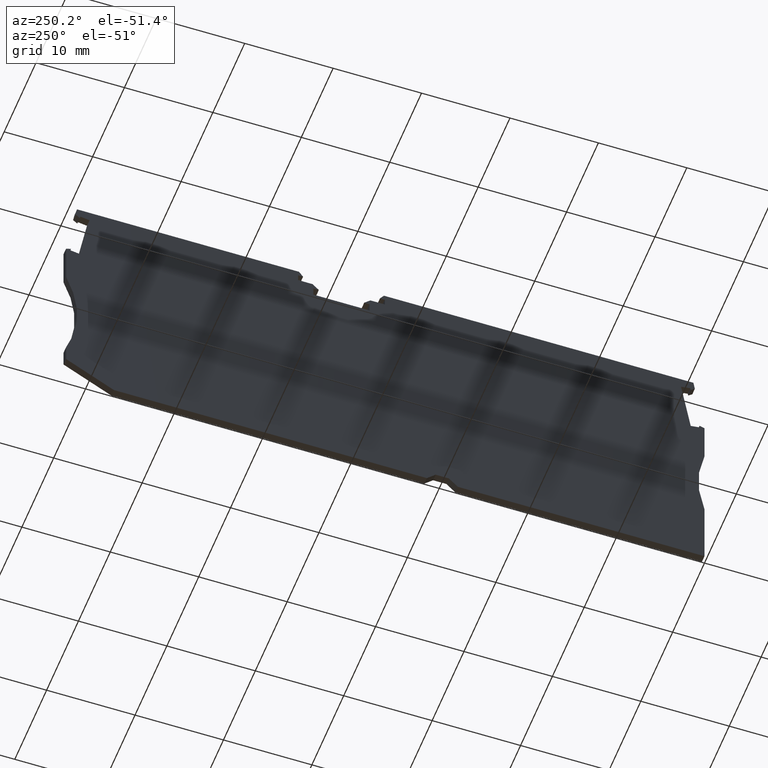
[diagram: clean part render]
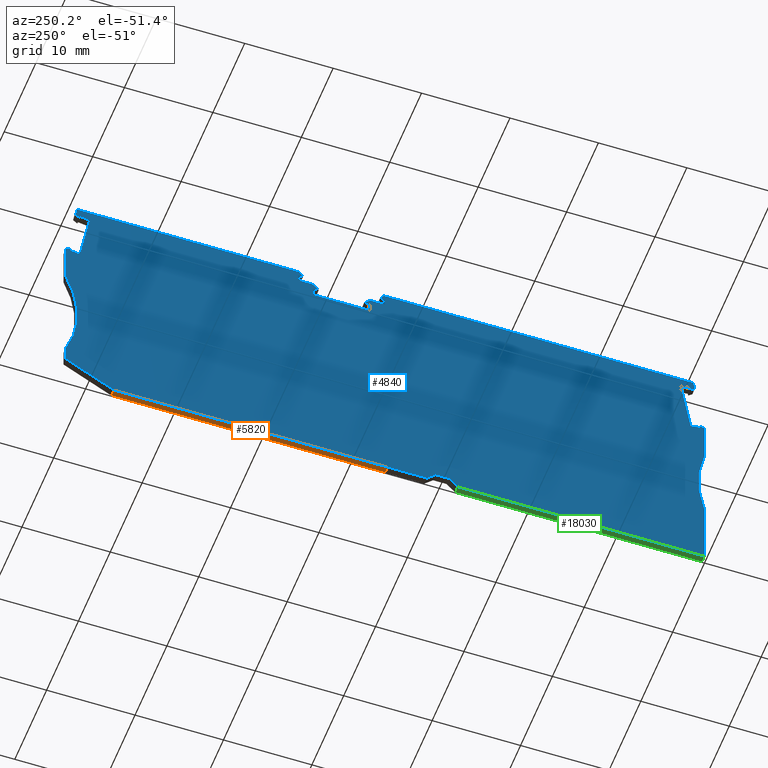
[diagram: same view with three faces highlighted in distinct colors, each labeled with its STEP entity id]
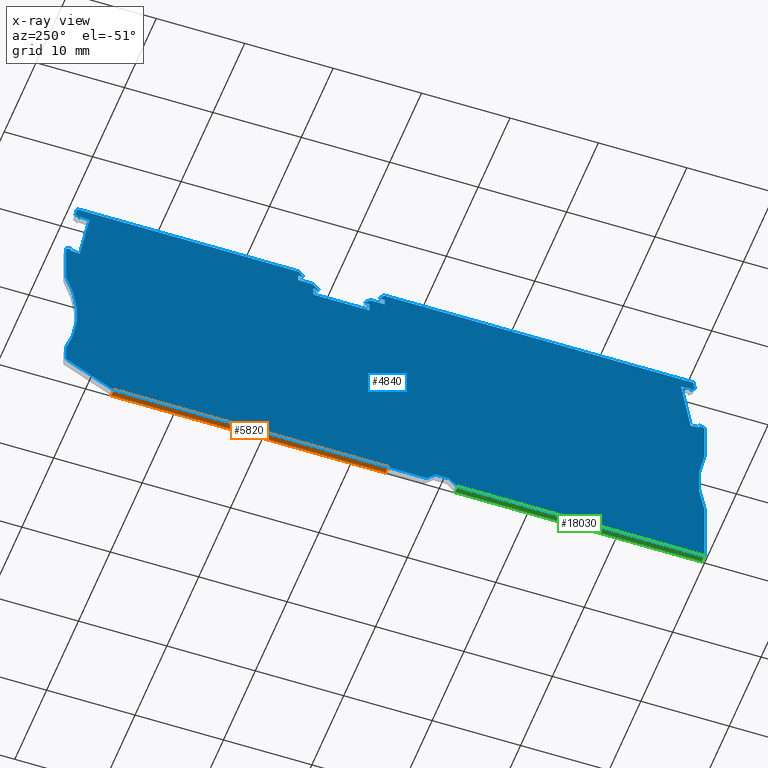
[diagram: x-ray of the same camera — body ghosted, the three highlighted faces saturated]
A machine part, auxiliary view with three faces highlighted in distinct colors.
The next image is the same camera in x-ray (body ghosted, the three faces saturated) — at least one of them is partly hidden behind the body in this view.
Their STEP definitions:

[orange] entity #5820 — the highlighted planar face has unit normal (0, 0, -1).
#480=CARTESIAN_POINT('',(27.0296808260463,-38.1999999999979,
2.14999999999998));
#490=DIRECTION('',(-1.94289029309402E-16,-1.,4.48415508583941E-44));
#500=DIRECTION('',(-1.,1.94289029309402E-16,0.));
#510=AXIS2_PLACEMENT_3D('',#480,#490,#500);
#520=PLANE('',#510);
#530=CARTESIAN_POINT('',(47.920285,-38.1999999999979,2.14999999999998));
#540=DIRECTION('',(-1.,1.94289029309402E-16,0.));
#550=VECTOR('',#540,1.);
#560=LINE('',#530,#550);
#570=CARTESIAN_POINT('',(35.6296808260589,-38.1999999999979,
2.14999999999998));
#580=VERTEX_POINT('',#570);
#630=CARTESIAN_POINT('',(35.6296808260592,-38.1999999999979,
-2.8421709430404E-14));
#640=DIRECTION('',(-1.06581410364014E-13,2.52435489670724E-29,1.));
#650=VECTOR('',#640,1.);
#660=LINE('',#630,#650);
#670=CARTESIAN_POINT('',(35.629680826059,-38.1999999999979,
1.34999999999997));
#680=VERTEX_POINT('',#670);
#690=EDGE_CURVE('',#680,#580,#660,.T.);
#710=CARTESIAN_POINT('',(47.920285,-38.1999999999979,1.34999999999997));
#720=DIRECTION('',(-1.,1.94289029309402E-16,0.));
#730=VECTOR('',#720,1.);
#740=LINE('',#710,#730);
#2080=CARTESIAN_POINT('',(66.6223898660811,-38.1999999999979,
1.34999999999997));
#2090=VERTEX_POINT('',#2080);
#2100=EDGE_CURVE('',#2090,#680,#740,.T.);
#5680=CARTESIAN_POINT('',(66.6223898660811,-38.1999999999979,
2.14999999999998));
#5690=VERTEX_POINT('',#5680);
#5700=EDGE_CURVE('',#5690,#580,#560,.T.);
#5710=ORIENTED_EDGE('',*,*,#5700,.T.);
#5720=CARTESIAN_POINT('',(66.6223898660811,-38.1999999999979,
-2.8421709430404E-14));
#5730=DIRECTION('',(-8.08237708627975E-44,-4.48415508583941E-44,-1.));
#5740=VECTOR('',#5730,1.);
#5750=LINE('',#5720,#5740);
#5760=EDGE_CURVE('',#5690,#2090,#5750,.T.);
#5770=ORIENTED_EDGE('',*,*,#5760,.F.);
#5780=ORIENTED_EDGE('',*,*,#2100,.F.);
#5790=ORIENTED_EDGE('',*,*,#690,.F.);
#5800=EDGE_LOOP('',(#5790,#5780,#5770,#5710));
#5810=FACE_OUTER_BOUND('',#5800,.T.);
#5820=ADVANCED_FACE('',(#5810),#520,.T.);

[blue] entity #4840 — the highlighted planar face has unit normal (-1, -0, -0).
#60=CARTESIAN_POINT('',(47.920285,-10.6000000000277,1.34999999999997));
#70=DIRECTION('',(-1.,9.71445146547012E-17,0.));
#80=VECTOR('',#70,1.);
#90=LINE('',#60,#80);
#100=CARTESIAN_POINT('',(37.6135285892874,-10.6000000000277,
1.34999999999997));
#110=VERTEX_POINT('',#100);
#120=CARTESIAN_POINT('',(35.9796808261869,-10.6000000000277,
1.34999999999997));
#130=VERTEX_POINT('',#120);
#140=EDGE_CURVE('',#110,#130,#90,.T.);
#670=CARTESIAN_POINT('',(35.629680826059,-38.1999999999979,
1.34999999999997));
#680=VERTEX_POINT('',#670);
#710=CARTESIAN_POINT('',(47.920285,-38.1999999999979,1.34999999999997));
#720=DIRECTION('',(-1.,1.94289029309402E-16,0.));
#730=VECTOR('',#720,1.);
#740=LINE('',#710,#730);
#750=CARTESIAN_POINT('',(31.2296808260789,-38.1999999999979,
1.34999999999997));
#760=VERTEX_POINT('',#750);
#770=EDGE_CURVE('',#680,#760,#740,.T.);
#1140=CARTESIAN_POINT('',(-0.170319173953686,-21.1999999999938,
1.34999999999997));
#1150=VERTEX_POINT('',#1140);
#1180=CARTESIAN_POINT('',(-0.170319173948428,-33.8861270000014,
1.34999999999999));
#1190=DIRECTION('',(0.,-1.,0.));
#1200=VECTOR('',#1190,1.);
#1210=LINE('',#1180,#1200);
#1220=CARTESIAN_POINT('',(-0.170319173950084,-16.3865101165632,
1.34999999999997));
#1230=VERTEX_POINT('',#1220);
#1240=EDGE_CURVE('',#1230,#1150,#1210,.T.);
#1420=CARTESIAN_POINT('',(40.8672148180469,-37.7999999999979,
1.34999999999997));
#1430=DIRECTION('',(0.,0.,-1.));
#1440=DIRECTION('',(-1.,9.71445146547012E-17,0.));
#1450=AXIS2_PLACEMENT_3D('',#1420,#1430,#1440);
#1460=PLANE('',#1450);
#1470=CARTESIAN_POINT('',(-2.73718602307331,-33.886127,1.34999999999997)
);
#1480=DIRECTION('',(0.17364817766764,0.984807753012083,0.));
#1490=VECTOR('',#1480,1.);
#1500=LINE('',#1470,#1490);
#1510=CARTESIAN_POINT('',(0.336322370407323,-16.4553947256842,
1.34999999999997));
#1520=VERTEX_POINT('',#1510);
#1530=CARTESIAN_POINT('',(0.384046542360117,-16.1847374969332,
1.34999999999997));
#1540=VERTEX_POINT('',#1530);
#1550=EDGE_CURVE('',#1520,#1540,#1500,.T.);
#1560=ORIENTED_EDGE('',*,*,#1550,.F.);
#1570=CARTESIAN_POINT('',(47.920285,1.11703835023839,1.34999999999997));
#1580=DIRECTION('',(-0.939692620788384,-0.342020143318867,0.));
#1590=VECTOR('',#1580,1.);
#1600=LINE('',#1570,#1590);
#1610=EDGE_CURVE('',#1540,#1230,#1600,.T.);
#1620=ORIENTED_EDGE('',*,*,#1610,.F.);
#1630=ORIENTED_EDGE('',*,*,#1240,.F.);
#1640=CARTESIAN_POINT('',(-14.4794071952026,-25.7000000000105,
1.34999999999999));
#1650=DIRECTION('',(0.,0.,1.));
#1660=DIRECTION('',(1.,0.,0.));
#1670=AXIS2_PLACEMENT_3D('',#1640,#1650,#1660);
#1680=CIRCLE('',#1670,15.);
#1690=CARTESIAN_POINT('',(-0.170319173949125,-30.2000000000127,
1.34999999999997));
#1700=VERTEX_POINT('',#1690);
#1710=EDGE_CURVE('',#1700,#1150,#1680,.T.);
#1720=ORIENTED_EDGE('',*,*,#1710,.T.);
#1730=CARTESIAN_POINT('',(-0.170319173948428,-33.8861270000014,
1.34999999999999));
#1740=DIRECTION('',(0.,-1.,0.));
#1750=VECTOR('',#1740,1.);
#1760=LINE('',#1730,#1750);
#1770=CARTESIAN_POINT('',(-0.170319173950084,-38.1999999999979,
1.34999999999997));
#1780=VERTEX_POINT('',#1770);
#1790=EDGE_CURVE('',#1700,#1780,#1760,.T.);
#1800=ORIENTED_EDGE('',*,*,#1790,.F.);
#1810=CARTESIAN_POINT('',(27.7296808260141,-38.1999999999979,
1.34999999999997));
#1820=VERTEX_POINT('',#1810);
#1830=EDGE_CURVE('',#1820,#1780,#740,.T.);
#1840=ORIENTED_EDGE('',*,*,#1830,.T.);
#1850=CARTESIAN_POINT('',(32.043553826012,-33.886127,1.34999999999997));
#1860=DIRECTION('',(-0.707106781186543,-0.707106781186552,0.));
#1870=VECTOR('',#1860,1.);
#1880=LINE('',#1850,#1870);
#1890=CARTESIAN_POINT('',(28.7296808260465,-37.1999999999655,
1.34999999999997));
#1900=VERTEX_POINT('',#1890);
#1910=EDGE_CURVE('',#1900,#1820,#1880,.T.);
#1920=ORIENTED_EDGE('',*,*,#1910,.T.);
#1930=CARTESIAN_POINT('',(47.920285,-37.1999999999655,1.34999999999997))
;
#1940=DIRECTION('',(-1.,-3.01922319318994E-15,0.));
#1950=VECTOR('',#1940,1.);
#1960=LINE('',#1930,#1950);
#1970=CARTESIAN_POINT('',(30.2296808260465,-37.1999999999655,
1.34999999999997));
#1980=VERTEX_POINT('',#1970);
#1990=EDGE_CURVE('',#1980,#1900,#1960,.T.);
#2000=ORIENTED_EDGE('',*,*,#1990,.T.);
#2010=CARTESIAN_POINT('',(26.915807826081,-33.886127,1.34999999999997));
#2020=DIRECTION('',(-0.707106781186546,0.707106781186549,0.));
#2030=VECTOR('',#2020,1.);
#2040=LINE('',#2010,#2030);
#2050=EDGE_CURVE('',#760,#1980,#2040,.T.);
#2060=ORIENTED_EDGE('',*,*,#2050,.T.);
#2070=ORIENTED_EDGE('',*,*,#770,.T.);
#2080=CARTESIAN_POINT('',(66.6223898660811,-38.1999999999979,
1.34999999999997));
#2090=VERTEX_POINT('',#2080);
#2100=EDGE_CURVE('',#2090,#680,#740,.T.);
#2110=ORIENTED_EDGE('',*,*,#2100,.T.);
#2120=CARTESIAN_POINT('',(0.,-75.1625328241467,1.3499999999673));
#2130=DIRECTION('',(0.874435210897321,0.485142311021167,0.));
#2140=VECTOR('',#2130,1.);
#2150=LINE('',#2120,#2140);
#2160=CARTESIAN_POINT('',(72.0296808260501,-35.2000000000079,
1.34999999999997));
#2170=VERTEX_POINT('',#2160);
#2180=EDGE_CURVE('',#2090,#2170,#2150,.T.);
#2190=ORIENTED_EDGE('',*,*,#2180,.F.);
#2200=CARTESIAN_POINT('',(72.0296808260518,-33.886127,1.34999999996731))
;
#2210=DIRECTION('',(0.,-1.,0.));
#2220=VECTOR('',#2210,1.);
#2230=LINE('',#2200,#2220);
#2240=CARTESIAN_POINT('',(72.0296808260501,-33.1999999999895,
1.34999999999997));
#2250=VERTEX_POINT('',#2240);
#2260=EDGE_CURVE('',#2250,#2170,#2230,.T.);
#2270=ORIENTED_EDGE('',*,*,#2260,.T.);
#2280=CARTESIAN_POINT('',(85.7774079109193,-27.2000000000027,
1.34999999996731));
#2290=DIRECTION('',(0.,0.,1.));
#2300=DIRECTION('',(1.,0.,0.));
#2310=AXIS2_PLACEMENT_3D('',#2280,#2290,#2300);
#2320=CIRCLE('',#2310,15.);
#2330=CARTESIAN_POINT('',(72.0296808260518,-21.2000000000027,
1.34999999999997));
#2340=VERTEX_POINT('',#2330);
#2350=EDGE_CURVE('',#2340,#2250,#2320,.T.);
#2360=ORIENTED_EDGE('',*,*,#2350,.T.);
#2370=CARTESIAN_POINT('',(72.0296808260518,-33.886127,1.3499999999673));
#2380=DIRECTION('',(-1.09031897762206E-24,1.,-5.04870979341448E-29));
#2390=VECTOR('',#2380,1.);
#2400=LINE('',#2370,#2390);
#2410=CARTESIAN_POINT('',(72.0296808260518,-16.3865101166626,
1.34999999999997));
#2420=VERTEX_POINT('',#2410);
#2430=EDGE_CURVE('',#2340,#2420,#2400,.T.);
#2440=ORIENTED_EDGE('',*,*,#2430,.F.);
#2450=CARTESIAN_POINT('',(59.720285,-11.90625643428,1.3499999999673));
#2460=DIRECTION('',(0.939692620788385,-0.342020143318865,0.));
#2470=VECTOR('',#2460,1.);
#2480=LINE('',#2450,#2470);
#2490=CARTESIAN_POINT('',(71.4821469105939,-16.1872240691891,
1.34999999999997));
#2500=VERTEX_POINT('',#2490);
#2510=EDGE_CURVE('',#2500,#2420,#2480,.T.);
#2520=ORIENTED_EDGE('',*,*,#2510,.T.);
#2530=CARTESIAN_POINT('',(74.6029410262491,-33.886127,1.3499999999673));
#2540=DIRECTION('',(-0.173648177667642,0.984807753012083,0.));
#2550=VECTOR('',#2540,1.);
#2560=LINE('',#2530,#2550);
#2570=CARTESIAN_POINT('',(71.5294326327686,-16.4553947256848,
1.34999999999997));
#2580=VERTEX_POINT('',#2570);
#2590=EDGE_CURVE('',#2580,#2500,#2560,.T.);
#2600=ORIENTED_EDGE('',*,*,#2590,.T.);
#2610=CARTESIAN_POINT('',(59.720285,-18.5376660725142,1.3499999999673));
#2620=DIRECTION('',(-0.984807753012168,-0.173648177667156,0.));
#2630=VECTOR('',#2620,1.);
#2640=LINE('',#2610,#2630);
#2650=CARTESIAN_POINT('',(70.4756883370464,-16.6411982757885,
1.34999999999997));
#2660=VERTEX_POINT('',#2650);
#2670=EDGE_CURVE('',#2580,#2660,#2640,.T.);
#2680=ORIENTED_EDGE('',*,*,#2670,.F.);
#2690=CARTESIAN_POINT('',(73.5164345515229,-33.886127,1.3499999999673));
#2700=DIRECTION('',(0.173648177667131,-0.984807753012173,0.));
#2710=VECTOR('',#2700,1.);
#2720=LINE('',#2690,#2710);
#2730=CARTESIAN_POINT('',(69.3773636133017,-10.4122892379863,
1.34999999999997));
#2740=VERTEX_POINT('',#2730);
#2750=EDGE_CURVE('',#2740,#2660,#2720,.T.);
#2760=ORIENTED_EDGE('',*,*,#2750,.T.);
#2770=CARTESIAN_POINT('',(59.720285,-12.1150927523309,1.3499999999673));
#2780=DIRECTION('',(0.984807753012229,0.173648177666814,0.));
#2790=VECTOR('',#2780,1.);
#2800=LINE('',#2770,#2790);
#2810=CARTESIAN_POINT('',(70.431107909025,-10.2264856878827,
1.34999999999997));
#2820=VERTEX_POINT('',#2810);
#2830=EDGE_CURVE('',#2740,#2820,#2800,.T.);
#2840=ORIENTED_EDGE('',*,*,#2830,.F.);
#2850=CARTESIAN_POINT('',(74.602941026221,-33.886127,1.3499999999673));
#2860=DIRECTION('',(-0.173648177666328,0.984807753012314,0.));
#2870=VECTOR('',#2860,1.);
#2880=LINE('',#2850,#2870);
#2890=CARTESIAN_POINT('',(70.4783936311997,-10.4946563443807,
1.34999999999997));
#2900=VERTEX_POINT('',#2890);
#2910=EDGE_CURVE('',#2900,#2820,#2880,.T.);
#2920=ORIENTED_EDGE('',*,*,#2910,.T.);
#2930=CARTESIAN_POINT('',(59.720285,-19.5217813289609,1.3499999999673));
#2940=DIRECTION('',(-0.766044443119838,-0.642787609685515,0.));
#2950=VECTOR('',#2940,1.);
#2960=LINE('',#2930,#2950);
#2970=CARTESIAN_POINT('',(70.9472061545728,-10.1012759289281,
1.34999999999997));
#2980=VERTEX_POINT('',#2970);
#2990=EDGE_CURVE('',#2980,#2900,#2960,.T.);
#3000=ORIENTED_EDGE('',*,*,#2990,.T.);
#3010=CARTESIAN_POINT('',(75.1411171305503,-33.886127,1.3499999999673));
#3020=DIRECTION('',(-0.173648177667356,0.984807753012133,0.));
#3030=VECTOR('',#3020,1.);
#3040=LINE('',#3010,#3030);
#3050=CARTESIAN_POINT('',(70.7794705422053,-9.15000000000795,
1.34999999999997));
#3060=VERTEX_POINT('',#3050);
#3070=EDGE_CURVE('',#2980,#3060,#3040,.T.);
#3080=ORIENTED_EDGE('',*,*,#3070,.F.);
#3090=CARTESIAN_POINT('',(59.720285,-9.15000000000795,1.3499999999673));
#3100=DIRECTION('',(-1.,0.,0.));
#3110=VECTOR('',#3100,1.);
#3120=LINE('',#3090,#3110);
#3130=CARTESIAN_POINT('',(45.6782490953308,-9.15000000000795,
1.34999999999997));
#3140=VERTEX_POINT('',#3130);
#3150=EDGE_CURVE('',#3060,#3140,#3120,.T.);
#3160=ORIENTED_EDGE('',*,*,#3150,.F.);
#3170=CARTESIAN_POINT('',(52.0851480699551,0.,1.34999999999997));
#3180=DIRECTION('',(-0.573576436351043,-0.819152044288994,0.));
#3190=VECTOR('',#3180,1.);
#3200=LINE('',#3170,#3190);
#3210=CARTESIAN_POINT('',(45.2231141955397,-9.79999999994338,
1.34999999999997));
#3220=VERTEX_POINT('',#3210);
#3230=EDGE_CURVE('',#3140,#3220,#3200,.T.);
#3240=ORIENTED_EDGE('',*,*,#3230,.F.);
#3250=CARTESIAN_POINT('',(0.,-9.79999999994338,1.34999999999997));
#3260=DIRECTION('',(1.,1.19716140932156E-55,0.));
#3270=VECTOR('',#3260,1.);
#3280=LINE('',#3250,#3270);
#3290=CARTESIAN_POINT('',(45.7796808261557,-9.79999999994338,
1.34999999999997));
#3300=VERTEX_POINT('',#3290);
#3310=EDGE_CURVE('',#3220,#3300,#3280,.T.);
#3320=ORIENTED_EDGE('',*,*,#3310,.F.);
#3330=CARTESIAN_POINT('',(45.7796808260226,-33.886127,1.34999999999998))
;
#3340=DIRECTION('',(-5.52620449401076E-12,-1.,0.));
#3350=VECTOR('',#3340,1.);
#3360=LINE('',#3330,#3350);
#3370=CARTESIAN_POINT('',(45.7796808261512,-10.599999999985,
1.34999999999997));
#3380=VERTEX_POINT('',#3370);
#3390=EDGE_CURVE('',#3300,#3380,#3360,.T.);
#3400=ORIENTED_EDGE('',*,*,#3390,.F.);
#3410=CARTESIAN_POINT('',(47.920285,-10.599999999985,1.34999999999997));
#3420=DIRECTION('',(-1.,9.71445146547012E-17,0.));
#3430=VECTOR('',#3420,1.);
#3440=LINE('',#3410,#3430);
#3450=CARTESIAN_POINT('',(44.1458330630939,-10.599999999985,
1.34999999999997));
#3460=VERTEX_POINT('',#3450);
#3470=EDGE_CURVE('',#3380,#3460,#3440,.T.);
#3480=ORIENTED_EDGE('',*,*,#3470,.F.);
#3490=CARTESIAN_POINT('',(47.920285,-6.82554806307934,1.34999999999997))
;
#3500=DIRECTION('',(-0.707106781186589,-0.707106781186506,0.));
#3510=VECTOR('',#3500,1.);
#3520=LINE('',#3490,#3510);
#3530=CARTESIAN_POINT('',(43.4458330630605,-11.3000000000183,
1.34999999999997));
#3540=VERTEX_POINT('',#3530);
#3550=EDGE_CURVE('',#3460,#3540,#3520,.T.);
#3560=ORIENTED_EDGE('',*,*,#3550,.F.);
#3570=CARTESIAN_POINT('',(47.920285,-11.3000000000185,1.34999999999998))
;
#3580=DIRECTION('',(1.,-4.56162885242861E-14,0.));
#3590=VECTOR('',#3580,1.);
#3600=LINE('',#3570,#3590);
#3610=CARTESIAN_POINT('',(44.054680826169,-11.3000000000183,
1.34999999999997));
#3620=VERTEX_POINT('',#3610);
#3630=EDGE_CURVE('',#3540,#3620,#3600,.T.);
#3640=ORIENTED_EDGE('',*,*,#3630,.F.);
#3650=CARTESIAN_POINT('',(44.0546808261691,-33.886127,1.34999999999998))
;
#3660=DIRECTION('',(7.77156117237609E-16,-1.,0.));
#3670=VECTOR('',#3660,1.);
#3680=LINE('',#3650,#3670);
#3690=CARTESIAN_POINT('',(44.054680826169,-12.350000000018,
1.34999999999997));
#3700=VERTEX_POINT('',#3690);
#3710=EDGE_CURVE('',#3620,#3700,#3680,.T.);
#3720=ORIENTED_EDGE('',*,*,#3710,.F.);
#3730=CARTESIAN_POINT('',(47.920285,-12.3500000000183,1.34999999999998))
;
#3740=DIRECTION('',(-1.,5.79536418854332E-14,0.));
#3750=VECTOR('',#3740,1.);
#3760=LINE('',#3730,#3750);
#3770=CARTESIAN_POINT('',(37.704680826169,-12.3500000000177,
1.34999999999997));
#3780=VERTEX_POINT('',#3770);
#3790=EDGE_CURVE('',#3700,#3780,#3760,.T.);
#3800=ORIENTED_EDGE('',*,*,#3790,.F.);
#3810=CARTESIAN_POINT('',(37.7046808261678,-33.886127,1.34999999999998))
;
#3820=DIRECTION('',(5.79536418854332E-14,1.,0.));
#3830=VECTOR('',#3820,1.);
#3840=LINE('',#3810,#3830);
#3850=CARTESIAN_POINT('',(37.7046808261691,-11.3000000000179,
1.34999999999997));
#3860=VERTEX_POINT('',#3850);
#3870=EDGE_CURVE('',#3780,#3860,#3840,.T.);
#3880=ORIENTED_EDGE('',*,*,#3870,.F.);
#3890=CARTESIAN_POINT('',(47.920285,-11.300000000018,1.34999999999997));
#3900=DIRECTION('',(1.,-1.16434639707563E-14,0.));
#3910=VECTOR('',#3900,1.);
#3920=LINE('',#3890,#3910);
#3930=CARTESIAN_POINT('',(38.3135285892775,-11.3000000000179,
1.34999999999997));
#3940=VERTEX_POINT('',#3930);
#3950=EDGE_CURVE('',#3860,#3940,#3920,.T.);
#3960=ORIENTED_EDGE('',*,*,#3950,.F.);
#3970=CARTESIAN_POINT('',(47.920285,-20.9067564107403,1.34999999999997))
;
#3980=DIRECTION('',(-0.707106781186548,0.707106781186547,0.));
#3990=VECTOR('',#3980,1.);
#4000=LINE('',#3970,#3990);
#4010=EDGE_CURVE('',#3940,#110,#4000,.T.);
#4020=ORIENTED_EDGE('',*,*,#4010,.F.);
#4030=ORIENTED_EDGE('',*,*,#140,.F.);
#4040=CARTESIAN_POINT('',(35.9796808263156,-33.886127,1.34999999999997))
;
#4050=DIRECTION('',(-5.52601020498144E-12,1.,0.));
#4060=VECTOR('',#4050,1.);
#4070=LINE('',#4040,#4060);
#4080=CARTESIAN_POINT('',(35.9796808261825,-9.79999999994336,
1.34999999999997));
#4090=VERTEX_POINT('',#4080);
#4100=EDGE_CURVE('',#130,#4090,#4070,.T.);
#4110=ORIENTED_EDGE('',*,*,#4100,.F.);
#4120=CARTESIAN_POINT('',(47.920285,-9.79999999994336,1.34999999999997))
;
#4130=DIRECTION('',(1.,1.19716140932156E-55,0.));
#4140=VECTOR('',#4130,1.);
#4150=LINE('',#4120,#4140);
#4160=CARTESIAN_POINT('',(36.5362474567983,-9.79999999994336,
1.34999999999997));
#4170=VERTEX_POINT('',#4160);
#4180=EDGE_CURVE('',#4090,#4170,#4150,.T.);
#4190=ORIENTED_EDGE('',*,*,#4180,.F.);
#4200=CARTESIAN_POINT('',(53.4015351485143,-33.886127,1.34999999999997))
;
#4210=DIRECTION('',(-0.573576436351043,0.819152044288994,0.));
#4220=VECTOR('',#4210,1.);
#4230=LINE('',#4200,#4220);
#4240=CARTESIAN_POINT('',(36.0811125570149,-9.15000000001895,
1.34999999999997));
#4250=VERTEX_POINT('',#4240);
#4260=EDGE_CURVE('',#4170,#4250,#4230,.T.);
#4270=ORIENTED_EDGE('',*,*,#4260,.F.);
#4280=CARTESIAN_POINT('',(47.920285,-9.15000000001752,1.34999999999997))
;
#4290=DIRECTION('',(1.,1.21042065259758E-13,0.));
#4300=VECTOR('',#4290,1.);
#4310=LINE('',#4280,#4300);
#4320=CARTESIAN_POINT('',(1.0862844609657,-9.15000000002318,
1.34999999999997));
#4330=VERTEX_POINT('',#4320);
#4340=EDGE_CURVE('',#4330,#4250,#4310,.T.);
#4350=ORIENTED_EDGE('',*,*,#4340,.T.);
#4360=CARTESIAN_POINT('',(-3.27536212737259,-33.8861270000014,
1.34999999999999));
#4370=DIRECTION('',(-0.173648177667354,-0.984807753012134,0.));
#4380=VECTOR('',#4370,1.);
#4390=LINE('',#4360,#4380);
#4400=CARTESIAN_POINT('',(0.917724832608855,-10.1059491558423,
1.34999999999997));
#4410=VERTEX_POINT('',#4400);
#4420=EDGE_CURVE('',#4330,#4410,#4390,.T.);
#4430=ORIENTED_EDGE('',*,*,#4420,.F.);
#4440=CARTESIAN_POINT('',(47.920285,-49.5457800565808,1.34999999999997))
;
#4450=DIRECTION('',(0.766044443119839,-0.642787609685513,0.));
#4460=VECTOR('',#4450,1.);
#4470=LINE('',#4440,#4460);
#4480=CARTESIAN_POINT('',(1.38653735598384,-10.4993295712965,
1.34999999999997));
#4490=VERTEX_POINT('',#4480);
#4500=EDGE_CURVE('',#4410,#4490,#4470,.T.);
#4510=ORIENTED_EDGE('',*,*,#4500,.F.);
#4520=CARTESIAN_POINT('',(-2.73718602304515,-33.886127,1.34999999999997)
);
#4530=DIRECTION('',(0.173648177666326,0.984807753012315,0.));
#4540=VECTOR('',#4530,1.);
#4550=LINE('',#4520,#4540);
#4560=CARTESIAN_POINT('',(1.43445431104377,-10.2275790152126,
1.34999999999997));
#4570=VERTEX_POINT('',#4560);
#4580=EDGE_CURVE('',#4490,#4570,#4550,.T.);
#4590=ORIENTED_EDGE('',*,*,#4580,.F.);
#4600=CARTESIAN_POINT('',(-11.8,-7.89398764522381,1.34999999999999));
#4610=DIRECTION('',(0.984807753012229,-0.173648177666812,0.));
#4620=VECTOR('',#4610,1.);
#4630=LINE('',#4600,#4620);
#4640=CARTESIAN_POINT('',(2.48199803879827,-10.4122892378876,
1.34999999999997));
#4650=VERTEX_POINT('',#4640);
#4660=EDGE_CURVE('',#4570,#4650,#4630,.T.);
#4670=ORIENTED_EDGE('',*,*,#4660,.F.);
#4680=CARTESIAN_POINT('',(-1.65707289944024,-33.886127,1.34999999999997)
);
#4690=DIRECTION('',(-0.173648177667129,-0.984807753012173,0.));
#4700=VECTOR('',#4690,1.);
#4710=LINE('',#4680,#4700);
#4720=CARTESIAN_POINT('',(1.38386609816074,-16.6401049483593,
1.34999999999997));
#4730=VERTEX_POINT('',#4720);
#4740=EDGE_CURVE('',#4650,#4730,#4710,.T.);
#4750=ORIENTED_EDGE('',*,*,#4740,.F.);
#4760=CARTESIAN_POINT('',(47.920285,-24.8457311863159,1.34999999999997))
;
#4770=DIRECTION('',(-0.984807753012169,0.173648177667154,0.));
#4780=VECTOR('',#4770,1.);
#4790=LINE('',#4760,#4780);
#4800=EDGE_CURVE('',#4730,#1520,#4790,.T.);
#4810=ORIENTED_EDGE('',*,*,#4800,.F.);
#4820=EDGE_LOOP('',(#4810,#4750,#4670,#4590,#4510,#4430,#4350,#4270,
#4190,#4110,#4030,#4020,#3960,#3880,#3800,#3720,#3640,#3560,#3480,#3400,
#3320,#3240,#3160,#3080,#3000,#2920,#2840,#2760,#2680,#2600,#2520,#2440,
#2360,#2270,#2190,#2110,#2070,#2060,#2000,#1920,#1840,#1800,#1720,#1630,
#1620,#1560));
#4830=FACE_OUTER_BOUND('',#4820,.T.);
#4840=ADVANCED_FACE('',(#4830),#1460,.T.);

[green] entity #18030 — the highlighted planar face has unit normal (0, 0, -1).
#480=CARTESIAN_POINT('',(27.0296808260463,-38.1999999999979,
2.14999999999998));
#490=DIRECTION('',(-1.94289029309402E-16,-1.,4.48415508583941E-44));
#500=DIRECTION('',(-1.,1.94289029309402E-16,0.));
#510=AXIS2_PLACEMENT_3D('',#480,#490,#500);
#520=PLANE('',#510);
#530=CARTESIAN_POINT('',(47.920285,-38.1999999999979,2.14999999999998));
#540=DIRECTION('',(-1.,1.94289029309402E-16,0.));
#550=VECTOR('',#540,1.);
#560=LINE('',#530,#550);
#710=CARTESIAN_POINT('',(47.920285,-38.1999999999979,1.34999999999997));
#720=DIRECTION('',(-1.,1.94289029309402E-16,0.));
#730=VECTOR('',#720,1.);
#740=LINE('',#710,#730);
#1770=CARTESIAN_POINT('',(-0.170319173950084,-38.1999999999979,
1.34999999999997));
#1780=VERTEX_POINT('',#1770);
#1810=CARTESIAN_POINT('',(27.7296808260141,-38.1999999999979,
1.34999999999997));
#1820=VERTEX_POINT('',#1810);
#1830=EDGE_CURVE('',#1820,#1780,#740,.T.);
#9230=CARTESIAN_POINT('',(27.7296808260141,-38.1999999999979,
-2.8421709430404E-14));
#9240=DIRECTION('',(-6.51062928816038E-28,1.58538823454459E-43,1.));
#9250=VECTOR('',#9240,1.);
#9260=LINE('',#9230,#9250);
#9270=CARTESIAN_POINT('',(27.7296808260141,-38.1999999999979,
2.14999999999998));
#9280=VERTEX_POINT('',#9270);
#9290=EDGE_CURVE('',#1820,#9280,#9260,.T.);
#11800=CARTESIAN_POINT('',(-0.170319173953722,-38.1999999999979,
-2.8421709430404E-14));
#11810=DIRECTION('',(-2.69438011972262E-12,4.03896783473158E-28,-1.));
#11820=VECTOR('',#11810,1.);
#11830=LINE('',#11800,#11820);
#11840=CARTESIAN_POINT('',(-0.170319173947931,-38.1999999999979,
2.14999999999998));
#11850=VERTEX_POINT('',#11840);
#11860=EDGE_CURVE('',#11850,#1780,#11830,.T.);
#16980=EDGE_CURVE('',#9280,#11850,#560,.T.);
#17970=ORIENTED_EDGE('',*,*,#9290,.T.);
#17980=ORIENTED_EDGE('',*,*,#1830,.F.);
#17990=ORIENTED_EDGE('',*,*,#11860,.T.);
#18000=ORIENTED_EDGE('',*,*,#16980,.T.);
#18010=EDGE_LOOP('',(#18000,#17990,#17980,#17970));
#18020=FACE_OUTER_BOUND('',#18010,.T.);
#18030=ADVANCED_FACE('',(#18020),#520,.T.);